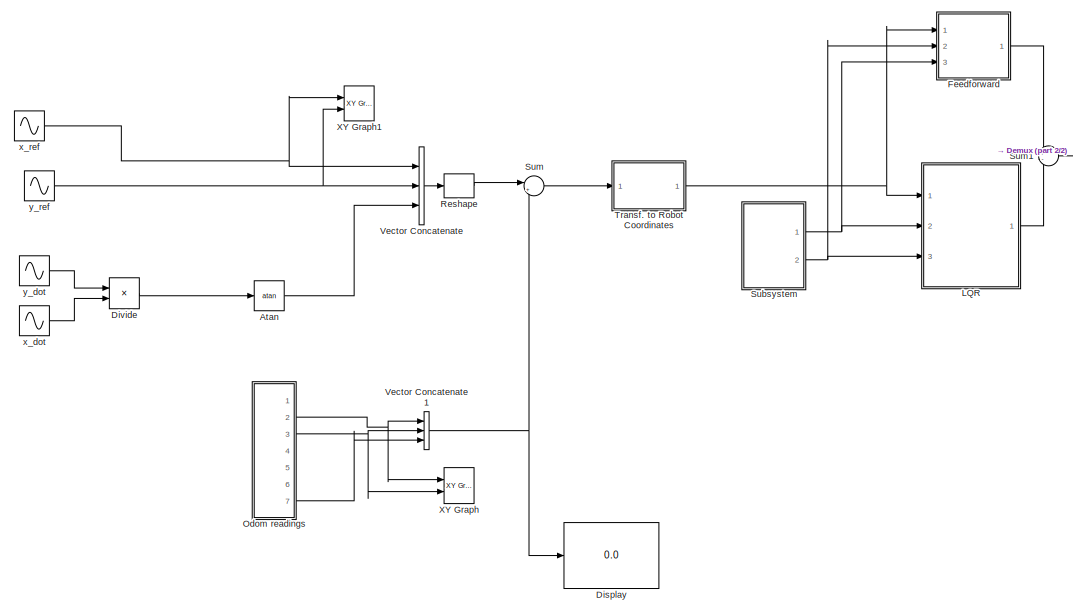
[diagram: root canvas - part 1/2, left side, full height]
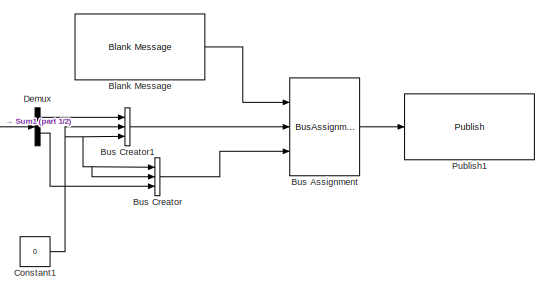
[diagram: root canvas - part 2/2, top right region]
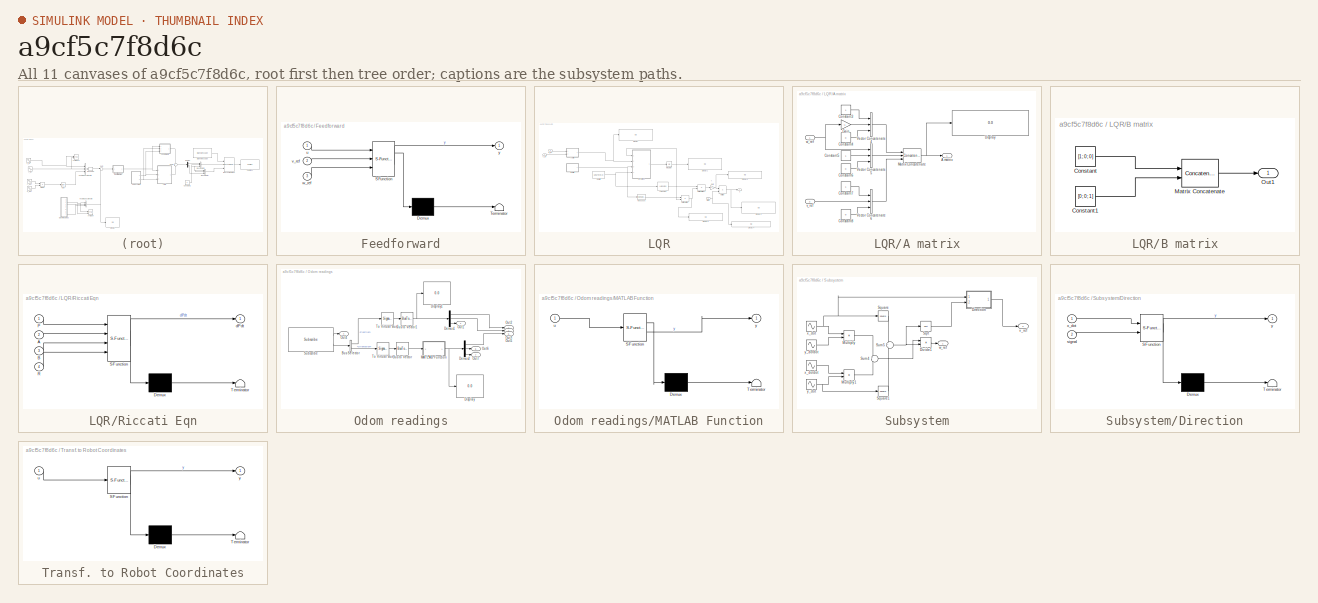
[diagram: thumbnail index - all 11 canvases of the model, root first then tree order]
MODEL slx_a9cf5c7f8d6c
KIND model
CONFIG AbsTol = auto
CONFIG EnableMultiTasking = off
CONFIG FixedStep = auto
CONFIG MaxStep = auto
CONFIG MinStep = auto
CONFIG RelTol = 1e-3
CONFIG SampleTimeConstraint = Unconstrained
CONFIG Solver = ode15s
CONFIG SolverName = ode15s
CONFIG StartTime = 0.0
CONFIG StopTime = Inf
BLOCK [Trigonometry] Atan
  Operator = atan
  Ports = [1, 1]
BLOCK [Reference] Blank Message  REF=robotlib/Blank Message
  Ports = [0, 1]
  SourceBlock = robotlib/Blank Message
  SourceProductBaseCode = RR
  SourceType = ROS Blank Message
BLOCK [BusAssignment] Bus Assignment
  AssignedSignals = Linear,Angular
  Ports = [3, 1]
BLOCK [BusCreator] Bus Creator
  DisplayOption = bar
  InheritFromInputs = on
  Inputs = 3
  Ports = [3, 1]
BLOCK [BusCreator] Bus Creator1
  DisplayOption = bar
  InheritFromInputs = on
  Inputs = 3
  Ports = [3, 1]
BLOCK [Constant] Constant1
  Value = 0
BLOCK [Demux] Demux
  Outputs = 2
  Ports = [1, 2]
BLOCK [Display] Display
  Decimation = 1
  Ports = [1]
BLOCK [Product] Divide
  Inputs = */
  Ports = [2, 1]
BLOCK [SubSystem] Feedforward
  ErrorFcn = Stateflow.Translate.translate
  PermitHierarchicalResolution = ExplicitOnly
  Ports = [3, 1]
  RequestExecContextInheritance = off
  SFBlockType = MATLAB Function
  TreatAsAtomicUnit = on
BLOCK [Demux] Feedforward/ Demux 
  Outputs = 1
  Ports = [1, 1]
BLOCK [S-Function] Feedforward/ SFunction 
  EnableBusSupport = on
  FunctionName = sf_sfun
  PortCounts = [3 2]
  Ports = [3, 2]
  SFcnIsStateOwnerBlock = off
  SFunctionDeploymentMode = off
  Tag = Stateflow S-Function 3
BLOCK [Terminator] Feedforward/ Terminator 
BLOCK [Inport] Feedforward/u
BLOCK [Inport] Feedforward/v_ref
  Port = 2
BLOCK [Inport] Feedforward/w_ref
  Port = 3
BLOCK [Outport] Feedforward/y
  VectorParamsAs1DForOutWhenUnconnected = off
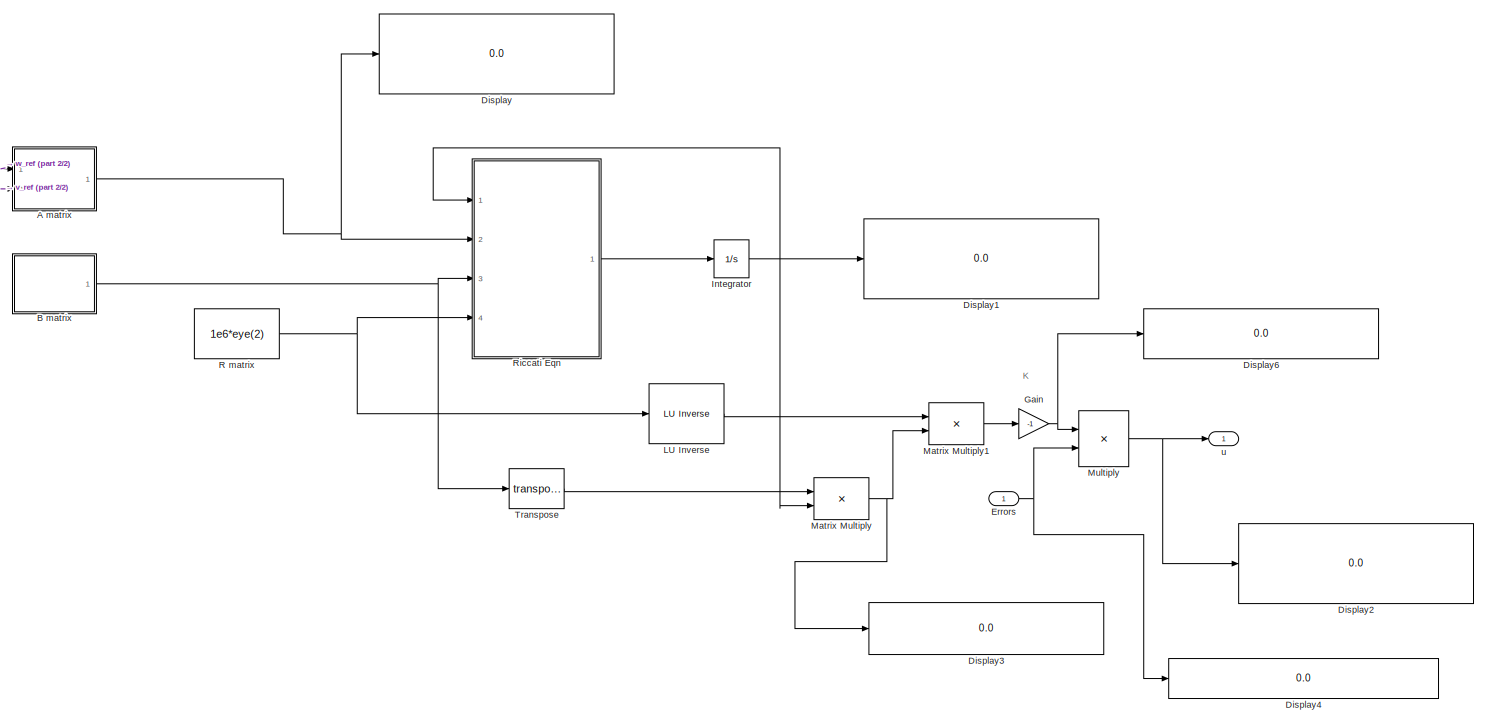
[diagram: LQR - part 1/2, most of the canvas]
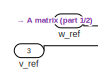
[diagram: LQR - part 2/2, top left region]
BLOCK [SubSystem] LQR
  Ports = [3, 1]
  RequestExecContextInheritance = off
BLOCK [Reference] LQR/ LU Inverse  REF=dspinverses/ LU Inverse
  Ports = [1, 1]
  SourceBlock = dspinverses/ LU Inverse
  SourceProductBaseCode = DS
  SourceType = LU Inverse
BLOCK [SubSystem] LQR/A matrix
  Ports = [2, 1]
  RequestExecContextInheritance = off
BLOCK [Outport] LQR/A matrix/A matrix
  VectorParamsAs1DForOutWhenUnconnected = off
BLOCK [Constant] LQR/A matrix/Constant3
BLOCK [Constant] LQR/A matrix/Constant4
  Value = 0
BLOCK [Constant] LQR/A matrix/Constant5
BLOCK [Constant] LQR/A matrix/Constant6
  Value = 0
BLOCK [Constant] LQR/A matrix/Constant7
BLOCK [Constant] LQR/A matrix/Constant8
  Value = 0
BLOCK [Display] LQR/A matrix/Display
  Decimation = 1
  Ports = [1]
BLOCK [Gain] LQR/A matrix/Gain
  Gain = -1
BLOCK [Concatenate] LQR/A matrix/Matrix Concatenate
  ConcatenateDimension = 2
  Mode = Multidimensional array
  NumInputs = 3
  Ports = [3, 1]
BLOCK [Concatenate] LQR/A matrix/Vector Concatenate4
  NumInputs = 3
  Ports = [3, 1]
BLOCK [Concatenate] LQR/A matrix/Vector Concatenate5
  NumInputs = 3
  Ports = [3, 1]
BLOCK [Concatenate] LQR/A matrix/Vector Concatenate6
  NumInputs = 3
  Ports = [3, 1]
BLOCK [Inport] LQR/A matrix/v_ref
  Port = 2
  VarSizeSig = No
BLOCK [Inport] LQR/A matrix/w_ref
BLOCK [SubSystem] LQR/B matrix
  Ports = [0, 1]
  RequestExecContextInheritance = off
BLOCK [Constant] LQR/B matrix/Constant
  Value = [1; 0; 0]
  VectorParams1D = off
BLOCK [Constant] LQR/B matrix/Constant1
  Value = [0; 0; 1]
  VectorParams1D = off
BLOCK [Concatenate] LQR/B matrix/Matrix Concatenate
  ConcatenateDimension = 2
  Mode = Multidimensional array
  Ports = [2, 1]
BLOCK [Outport] LQR/B matrix/Out1
  VectorParamsAs1DForOutWhenUnconnected = off
BLOCK [Display] LQR/Display
  Decimation = 1
  Ports = [1]
BLOCK [Display] LQR/Display1
  Decimation = 1
  Ports = [1]
BLOCK [Display] LQR/Display2
  Decimation = 1
  Ports = [1]
BLOCK [Display] LQR/Display3
  Decimation = 1
  Ports = [1]
BLOCK [Display] LQR/Display4
  Decimation = 1
  Ports = [1]
BLOCK [Display] LQR/Display6
  Decimation = 1
  Ports = [1]
BLOCK [Inport] LQR/Errors
BLOCK [Gain] LQR/Gain
  Gain = -1
BLOCK [Integrator] LQR/Integrator
  Ports = [1, 1]
BLOCK [Product] LQR/Matrix Multiply
  Multiplication = Matrix(*)
  Ports = [2, 1]
BLOCK [Product] LQR/Matrix Multiply1
  Multiplication = Matrix(*)
  Ports = [2, 1]
BLOCK [Product] LQR/Multiply
  Multiplication = Matrix(*)
  Ports = [2, 1]
BLOCK [Constant] LQR/R matrix
  Value = 1e6*eye(2)
  VectorParams1D = off
BLOCK [SubSystem] LQR/Riccati Eqn
  ErrorFcn = Stateflow.Translate.translate
  PermitHierarchicalResolution = ExplicitOnly
  Ports = [4, 1]
  RequestExecContextInheritance = off
  SFBlockType = MATLAB Function
  TreatAsAtomicUnit = on
BLOCK [Demux] LQR/Riccati Eqn/ Demux 
  Outputs = 1
  Ports = [1, 1]
BLOCK [S-Function] LQR/Riccati Eqn/ SFunction 
  EnableBusSupport = on
  FunctionName = sf_sfun
  PortCounts = [4 2]
  Ports = [4, 2]
  SFcnIsStateOwnerBlock = off
  SFunctionDeploymentMode = off
  Tag = Stateflow S-Function 8
BLOCK [Terminator] LQR/Riccati Eqn/ Terminator 
BLOCK [Inport] LQR/Riccati Eqn/A
  Port = 2
BLOCK [Inport] LQR/Riccati Eqn/B
  Port = 3
BLOCK [Inport] LQR/Riccati Eqn/P
BLOCK [Inport] LQR/Riccati Eqn/R
  Port = 4
BLOCK [Outport] LQR/Riccati Eqn/dPdt
  VectorParamsAs1DForOutWhenUnconnected = off
BLOCK [Math] LQR/Transpose
  Operator = transpose
  Ports = [1, 1]
  SignedPower = on
BLOCK [Outport] LQR/u
  VectorParamsAs1DForOutWhenUnconnected = off
BLOCK [Inport] LQR/v_ref
  Port = 3
BLOCK [Inport] LQR/w_ref
  Port = 2
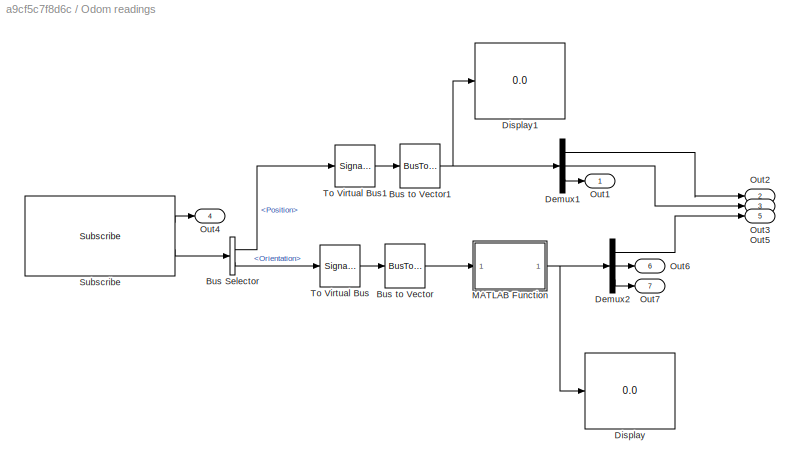
BLOCK [SubSystem] Odom readings
  Ports = [0, 7]
  RequestExecContextInheritance = off
BLOCK [BusSelector] Odom readings/Bus Selector
  OutputSignals = Pose.Pose.Position,Pose.Pose.Orientation
  Ports = [1, 2]
BLOCK [BusToVector] Odom readings/Bus to Vector
BLOCK [BusToVector] Odom readings/Bus to Vector1
BLOCK [Demux] Odom readings/Demux1
  Outputs = 3
  Ports = [1, 3]
BLOCK [Demux] Odom readings/Demux2
  Outputs = 3
  Ports = [1, 3]
BLOCK [Display] Odom readings/Display
  Decimation = 1
  Ports = [1]
BLOCK [Display] Odom readings/Display1
  Decimation = 1
  Ports = [1]
BLOCK [SubSystem] Odom readings/MATLAB Function
  ErrorFcn = Stateflow.Translate.translate
  PermitHierarchicalResolution = ExplicitOnly
  Ports = [1, 1]
  RequestExecContextInheritance = off
  SFBlockType = MATLAB Function
  TreatAsAtomicUnit = on
BLOCK [Demux] Odom readings/MATLAB Function/ Demux 
  Outputs = 1
  Ports = [1, 1]
BLOCK [S-Function] Odom readings/MATLAB Function/ SFunction 
  EnableBusSupport = on
  FunctionName = sf_sfun
  PortCounts = [1 2]
  Ports = [1, 2]
  SFcnIsStateOwnerBlock = off
  SFunctionDeploymentMode = off
  Tag = Stateflow S-Function 4
BLOCK [Terminator] Odom readings/MATLAB Function/ Terminator 
BLOCK [Inport] Odom readings/MATLAB Function/u
BLOCK [Outport] Odom readings/MATLAB Function/y
BLOCK [Outport] Odom readings/Out1
BLOCK [Outport] Odom readings/Out2
  Port = 2
BLOCK [Outport] Odom readings/Out3
  Port = 3
BLOCK [Outport] Odom readings/Out4
  Port = 4
BLOCK [Outport] Odom readings/Out5
  Port = 5
BLOCK [Outport] Odom readings/Out6
  Port = 6
BLOCK [Outport] Odom readings/Out7
  Port = 7
BLOCK [Reference] Odom readings/Subscribe  REF=robotlib/Subscribe
  Ports = [0, 2]
  SourceBlock = robotlib/Subscribe
  SourceProductBaseCode = RR
  SourceType = ROS Subscribe
BLOCK [SignalConversion] Odom readings/To Virtual Bus
  ConversionOutput = Virtual bus
  OverrideOpt = off
BLOCK [SignalConversion] Odom readings/To Virtual Bus1
  ConversionOutput = Virtual bus
  OverrideOpt = off
BLOCK [Reference] Publish1  REF=robotlib/Publish
  Ports = [1]
  SourceBlock = robotlib/Publish
  SourceProductBaseCode = RR
  SourceType = ROS Publish
BLOCK [Reshape] Reshape
  OutputDimensionality = Column vector (2-D)
  Ports = [1, 1]
BLOCK [SubSystem] Subsystem
  Ports = [0, 2]
  RequestExecContextInheritance = off
BLOCK [SubSystem] Subsystem/Direction
  ErrorFcn = Stateflow.Translate.translate
  PermitHierarchicalResolution = ExplicitOnly
  Ports = [2, 1]
  RequestExecContextInheritance = off
  SFBlockType = MATLAB Function
  TreatAsAtomicUnit = on
BLOCK [Demux] Subsystem/Direction/ Demux 
  Outputs = 1
  Ports = [1, 1]
BLOCK [S-Function] Subsystem/Direction/ SFunction 
  EnableBusSupport = on
  FunctionName = sf_sfun
  PortCounts = [2 2]
  Ports = [2, 2]
  SFcnIsStateOwnerBlock = off
  SFunctionDeploymentMode = off
  Tag = Stateflow S-Function 1
BLOCK [Terminator] Subsystem/Direction/ Terminator 
BLOCK [Inport] Subsystem/Direction/signal
  Port = 2
BLOCK [Inport] Subsystem/Direction/x_dot
BLOCK [Outport] Subsystem/Direction/y
  VectorParamsAs1DForOutWhenUnconnected = off
BLOCK [Product] Subsystem/Divide1
  Inputs = */
  Ports = [2, 1]
BLOCK [Product] Subsystem/Multiply
  Ports = [2, 1]
BLOCK [Product] Subsystem/Multiply1
  Ports = [2, 1]
BLOCK [Sqrt] Subsystem/Sqrt
BLOCK [Math] Subsystem/Square
  Operator = square
  Ports = [1, 1]
  SignedPower = on
BLOCK [Math] Subsystem/Square1
  Operator = square
  Ports = [1, 1]
  SignedPower = on
BLOCK [Sum] Subsystem/Sum4
  Inputs = +-
  Ports = [2, 1]
BLOCK [Sum] Subsystem/Sum5
  Ports = [2, 1]
BLOCK [Outport] Subsystem/v_ref
  Port = 2
  VectorParamsAs1DForOutWhenUnconnected = off
BLOCK [Outport] Subsystem/w_ref
  VectorParamsAs1DForOutWhenUnconnected = off
BLOCK [Sin] Subsystem/x_dot
  Amplitude = 0.3^2
  Frequency = 0.3
  Phase = pi/2
  Ports = [0, 1]
  SampleTime = 0
BLOCK [Sin] Subsystem/x_dotdot
  Amplitude = -0.3^3
  Frequency = 0.3
  Ports = [0, 1]
  SampleTime = 0
BLOCK [Sin] Subsystem/y_dot
  Amplitude = -0.3^2
  Frequency = 0.3
  Ports = [0, 1]
  SampleTime = 0
BLOCK [Sin] Subsystem/y_dotdot
  Amplitude = -0.3^3
  Frequency = 0.3
  Phase = pi/2
  Ports = [0, 1]
  SampleTime = 0
BLOCK [Sum] Sum
  Inputs = |+-
  Ports = [2, 1]
BLOCK [Sum] Sum1
  Inputs = +-
  Ports = [2, 1]
BLOCK [SubSystem] Transf. to Robot Coordinates
  ErrorFcn = Stateflow.Translate.translate
  PermitHierarchicalResolution = ExplicitOnly
  Ports = [1, 1]
  RequestExecContextInheritance = off
  SFBlockType = MATLAB Function
  TreatAsAtomicUnit = on
BLOCK [Demux] Transf. to Robot Coordinates/ Demux 
  Outputs = 1
  Ports = [1, 1]
BLOCK [S-Function] Transf. to Robot Coordinates/ SFunction 
  EnableBusSupport = on
  FunctionName = sf_sfun
  PortCounts = [1 2]
  Ports = [1, 2]
  SFcnIsStateOwnerBlock = off
  SFunctionDeploymentMode = off
  Tag = Stateflow S-Function 2
BLOCK [Terminator] Transf. to Robot Coordinates/ Terminator 
BLOCK [Inport] Transf. to Robot Coordinates/u
BLOCK [Outport] Transf. to Robot Coordinates/y
  VectorParamsAs1DForOutWhenUnconnected = off
BLOCK [Concatenate] Vector Concatenate
  NumInputs = 3
  Ports = [3, 1]
BLOCK [Concatenate] Vector Concatenate1
  NumInputs = 3
  Ports = [3, 1]
BLOCK [Reference] XY Graph  REF=simulink/Sinks/XY Graph
  Ports = [2]
  SourceBlock = simulink/Sinks/XY Graph
  SourceProductBaseCode = SL
  SourceType = XY scope.
BLOCK [Reference] XY Graph1  REF=simulink/Sinks/XY Graph
  Ports = [2]
  SourceBlock = simulink/Sinks/XY Graph
  SourceProductBaseCode = SL
  SourceType = XY scope.
BLOCK [Sin] x_dot
  Amplitude = 0.3^2
  Frequency = 0.3
  Phase = pi/2
  Ports = [0, 1]
  SampleTime = 0
BLOCK [Sin] x_ref
  Amplitude = 0.3
  Frequency = 0.3
  Ports = [0, 1]
  SampleTime = 0
BLOCK [Sin] y_dot
  Amplitude = -0.3^2
  Frequency = 0.3
  Ports = [0, 1]
  SampleTime = 0
BLOCK [Sin] y_ref
  Amplitude = 0.3
  Bias = -0.3
  Frequency = 0.3
  Phase = pi/2
  Ports = [0, 1]
  SampleTime = 0
ANNOTATION LQR: K
LINE Atan:1 -> Vector Concatenate:3
LINE Blank Message:1 -> Bus Assignment:1
LINE Bus Assignment:1 -> Publish1:1
LINE Bus Creator1:1 -> Bus Assignment:2
LINE Bus Creator:1 -> Bus Assignment:3
NET Constant1:1 -> Bus Creator1:2, Bus Creator1:3, Bus Creator:1, Bus Creator:2
LINE Demux:1 -> Bus Creator1:1
LINE Demux:2 -> Bus Creator:3
LINE Divide:1 -> Atan:1
LINE Feedforward:1 -> Sum1:1
LINE LQR/ LU Inverse:1 -> LQR/Matrix Multiply1:1
LINE LQR/A matrix/Constant3:1 -> LQR/A matrix/Vector Concatenate4:1
LINE LQR/A matrix/Constant4:1 -> LQR/A matrix/Vector Concatenate4:3
LINE LQR/A matrix/Constant5:1 -> LQR/A matrix/Vector Concatenate5:2
LINE LQR/A matrix/Constant6:1 -> LQR/A matrix/Vector Concatenate5:3
LINE LQR/A matrix/Constant7:1 -> LQR/A matrix/Vector Concatenate6:1
LINE LQR/A matrix/Constant8:1 -> LQR/A matrix/Vector Concatenate6:3
LINE LQR/A matrix/Gain:1 -> LQR/A matrix/Vector Concatenate4:2
NET LQR/A matrix/Matrix Concatenate:1 -> LQR/A matrix/A matrix:1, LQR/A matrix/Display:1
LINE LQR/A matrix/Vector Concatenate4:1 -> LQR/A matrix/Matrix Concatenate:1
LINE LQR/A matrix/Vector Concatenate5:1 -> LQR/A matrix/Matrix Concatenate:2
LINE LQR/A matrix/Vector Concatenate6:1 -> LQR/A matrix/Matrix Concatenate:3
LINE LQR/A matrix/v_ref:1 -> LQR/A matrix/Vector Concatenate6:2
NET LQR/A matrix/w_ref:1 -> LQR/A matrix/Gain:1, LQR/A matrix/Vector Concatenate5:1
NET LQR/A matrix:1 -> LQR/Display:1, LQR/Riccati Eqn:2
LINE LQR/B matrix/Constant1:1 -> LQR/B matrix/Matrix Concatenate:2
LINE LQR/B matrix/Constant:1 -> LQR/B matrix/Matrix Concatenate:1
LINE LQR/B matrix/Matrix Concatenate:1 -> LQR/B matrix/Out1:1
NET LQR/B matrix:1 -> LQR/Riccati Eqn:3, LQR/Transpose:1
NET LQR/Errors:1 -> LQR/Display4:1, LQR/Multiply:2
NET LQR/Gain:1 -> LQR/Display6:1, LQR/Multiply:1
NET LQR/Integrator:1 -> LQR/Display1:1, LQR/Matrix Multiply:2, LQR/Riccati Eqn:1
LINE LQR/Matrix Multiply1:1 -> LQR/Gain:1
NET LQR/Matrix Multiply:1 -> LQR/Display3:1, LQR/Matrix Multiply1:2
NET LQR/Multiply:1 -> LQR/Display2:1, LQR/u:1
NET LQR/R matrix:1 -> LQR/ LU Inverse:1, LQR/Riccati Eqn:4
LINE LQR/Riccati Eqn:1 -> LQR/Integrator:1
LINE LQR/Transpose:1 -> LQR/Matrix Multiply:1
LINE LQR/v_ref:1 -> LQR/A matrix:2
LINE LQR/w_ref:1 -> LQR/A matrix:1
LINE LQR:1 -> Sum1:2
LINE Odom readings/Bus Selector:1 -> Odom readings/To Virtual Bus1:1
LINE Odom readings/Bus Selector:2 -> Odom readings/To Virtual Bus:1
NET Odom readings/Bus to Vector1:1 -> Odom readings/Demux1:1, Odom readings/Display1:1
LINE Odom readings/Bus to Vector:1 -> Odom readings/MATLAB Function:1
LINE Odom readings/Demux1:1 -> Odom readings/Out2:1
LINE Odom readings/Demux1:2 -> Odom readings/Out3:1
LINE Odom readings/Demux1:3 -> Odom readings/Out1:1
LINE Odom readings/Demux2:1 -> Odom readings/Out5:1
LINE Odom readings/Demux2:2 -> Odom readings/Out6:1
LINE Odom readings/Demux2:3 -> Odom readings/Out7:1
NET Odom readings/MATLAB Function:1 -> Odom readings/Demux2:1, Odom readings/Display:1
LINE Odom readings/Subscribe:1 -> Odom readings/Out4:1
LINE Odom readings/Subscribe:2 -> Odom readings/Bus Selector:1
LINE Odom readings/To Virtual Bus1:1 -> Odom readings/Bus to Vector1:1
LINE Odom readings/To Virtual Bus:1 -> Odom readings/Bus to Vector:1
NET Odom readings:2 -> Vector Concatenate1:1, XY Graph:1
NET Odom readings:3 -> Vector Concatenate1:2, XY Graph:2
LINE Odom readings:7 -> Vector Concatenate1:3
LINE Reshape:1 -> Sum:1
LINE Subsystem/Direction:1 -> Subsystem/v_ref:1
LINE Subsystem/Divide1:1 -> Subsystem/w_ref:1
LINE Subsystem/Multiply1:1 -> Subsystem/Sum4:2
LINE Subsystem/Multiply:1 -> Subsystem/Sum4:1
LINE Subsystem/Sqrt:1 -> Subsystem/Direction:2
LINE Subsystem/Square1:1 -> Subsystem/Sum5:2
LINE Subsystem/Square:1 -> Subsystem/Sum5:1
LINE Subsystem/Sum4:1 -> Subsystem/Divide1:1
NET Subsystem/Sum5:1 -> Subsystem/Divide1:2, Subsystem/Sqrt:1
NET Subsystem/x_dot:1 -> Subsystem/Direction:1, Subsystem/Multiply:1, Subsystem/Square:1
LINE Subsystem/x_dotdot:1 -> Subsystem/Multiply1:1
NET Subsystem/y_dot:1 -> Subsystem/Multiply1:2, Subsystem/Square1:1
LINE Subsystem/y_dotdot:1 -> Subsystem/Multiply:2
NET Subsystem:1 -> Feedforward:3, LQR:2
NET Subsystem:2 -> Feedforward:2, LQR:3
LINE Sum1:1 -> Demux:1
LINE Sum:1 -> Transf. to Robot Coordinates:1
NET Transf. to Robot Coordinates:1 -> Feedforward:1, LQR:1
NET Vector Concatenate1:1 -> Display:1, Sum:2
LINE Vector Concatenate:1 -> Reshape:1
LINE x_dot:1 -> Divide:2
NET x_ref:1 -> Vector Concatenate:1, XY Graph1:1
LINE y_dot:1 -> Divide:1
NET y_ref:1 -> Vector Concatenate:2, XY Graph1:2
note: NET lines group one-source signal fan-out (src -> all destinations, sorted); 1:1 wires keep LINE
CHART Subsystem/Direction states=1 transitions=1
  STATE_LABEL 'eML_blk_kernel()'
  STATE_LABEL 'SCRIPT:\nfunction y = fcn(x_dot, signal)\nif x_dot < 0\n    y = -signal;\nelse\n    y = signal;\nend\nend\n\n'
CHART Transf. to Robot Coordinates states=1 transitions=1
  STATE_LABEL 'eML_blk_kernel()'
  STATE_LABEL 'SCRIPT:\nfunction y = fcn(u)\n\ntheta = u(3);\nA = [cos(theta), sin(theta), 0;\n    -sin(theta), cos(theta), 0;\n    0, 0, 1];\n\ny = A*u;\n\n'
CHART Feedforward states=1 transitions=1
  STATE_LABEL 'eML_blk_kernel()'
  STATE_LABEL 'SCRIPT:\nfunction y = fcn(u, v_ref, w_ref)\n\n    e3 = u(3);\n    \n    y = [cos(e3)*v_ref;\n        w_ref];\n\n'
CHART Odom readings/MATLAB Function states=1 transitions=1
  STATE_LABEL 'eML_blk_kernel()'
  STATE_LABEL "SCRIPT:\nfunction y = fcn(u)\n\ny = quat2eul(u');\n\n\n"
CHART LQR/Riccati Eqn states=1 transitions=1
  STATE_LABEL 'eML_blk_kernel()'
  STATE_LABEL "SCRIPT:\nfunction dPdt = mRiccati(P,A,B,R)\n\n% A = rand(3,3);\n% B = rand(3,2);\nQ = diag([1 1 10]);\n% R = 1e-4*diag([1 1]);\n% P = rand(3,3);\n\n\n% Continuous Riccati differential equation\ndPdt = -(A'*P + P*A - (P*B)*pinv(R)*(B'*P) + Q); \n\n"
CHART  states=0 transitions=0
CHART  states=0 transitions=0
CHART  states=0 transitions=0
CHART  states=0 transitions=0
CHART  states=0 transitions=0
